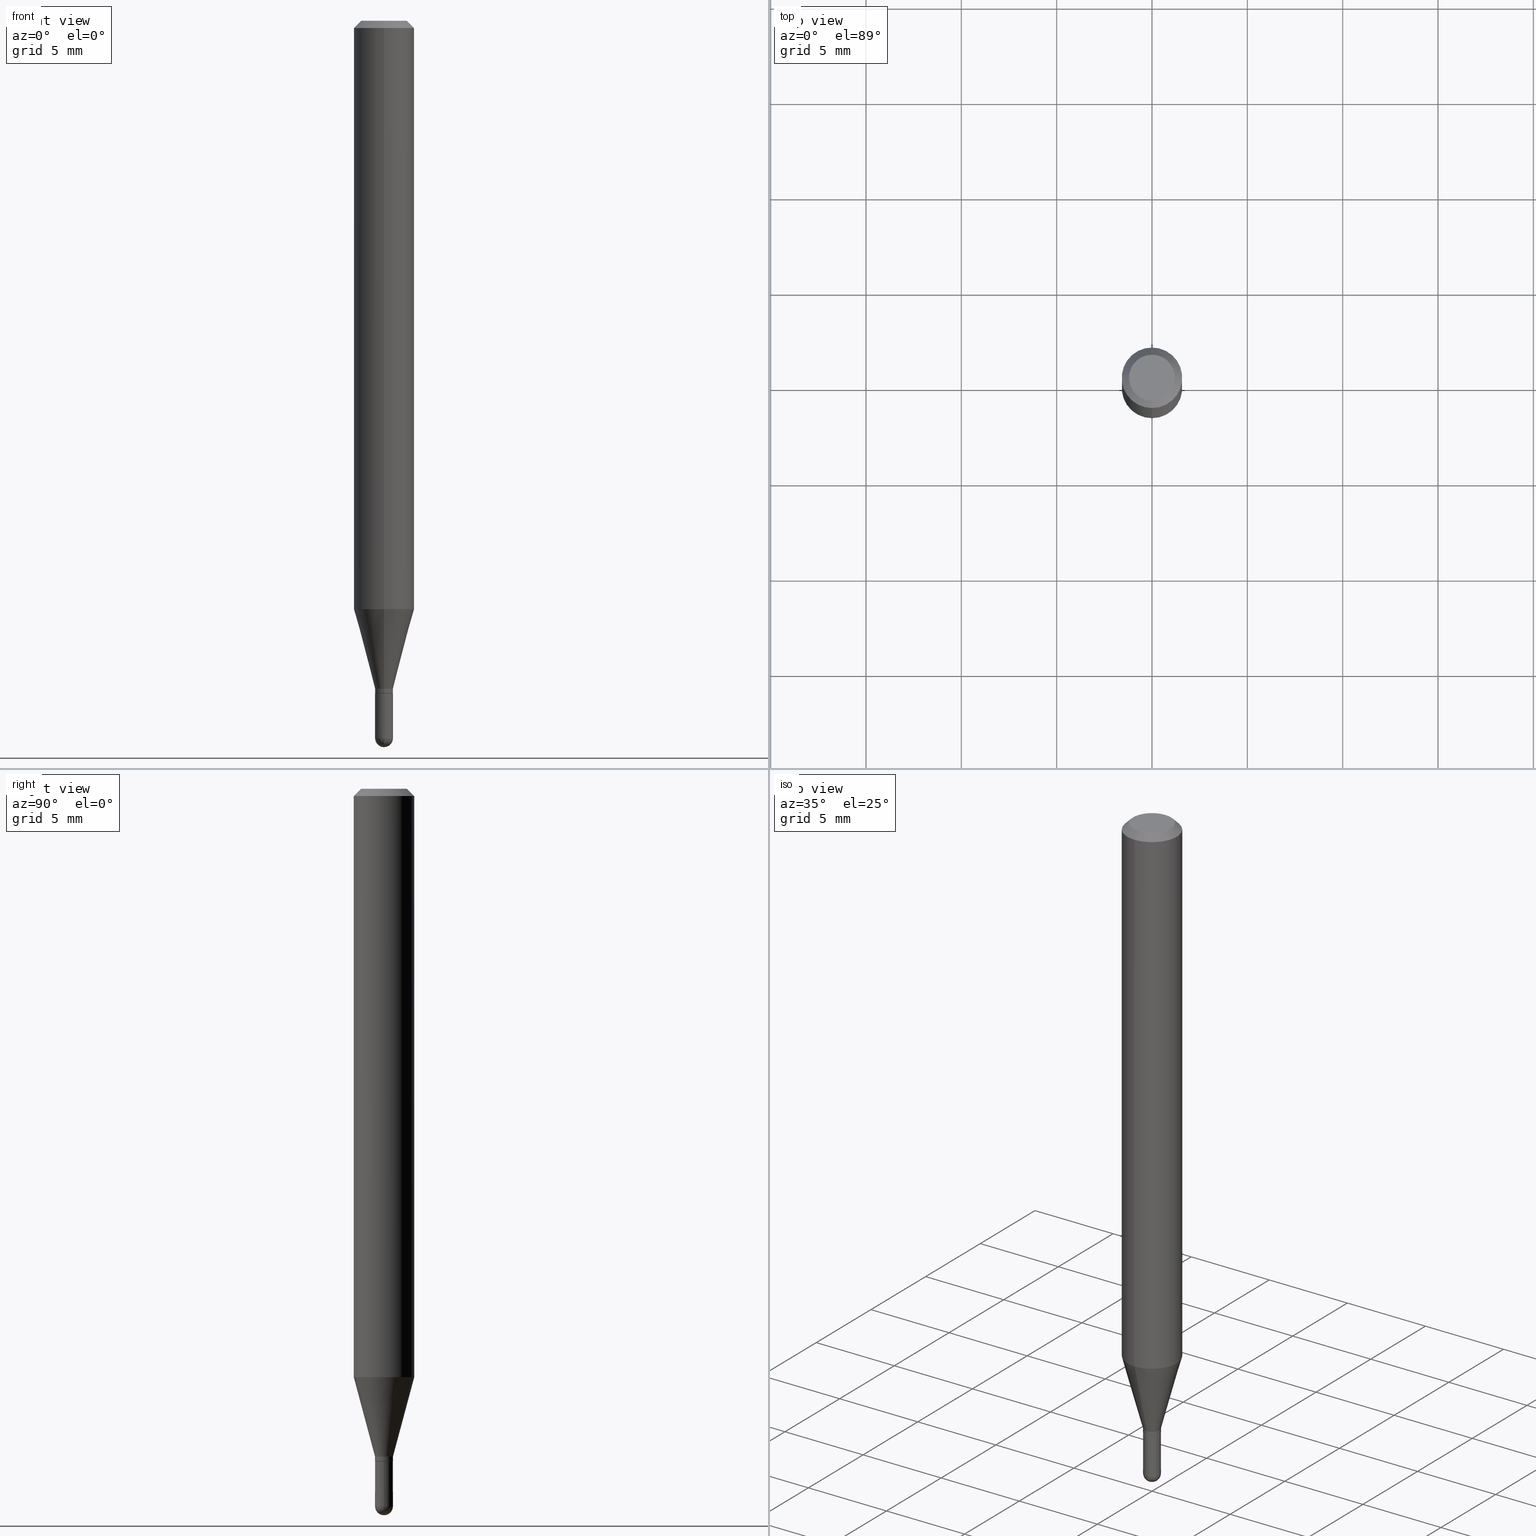
[diagram: canonical four-view strip — front | top / right | iso, engineering-drawing reading convention]
A machine part, canonical four-view strip (front | top / right | iso — engineering-drawing reading convention). The complete STEP part file that produces these views, byte-faithful:
ISO-10303-21;
HEADER;
FILE_DESCRIPTION (( 'STEP AP203' ),
    '1' );
FILE_NAME ('00475.STEP',
    '2024-03-07T17:59:24',
    ( '' ),
    ( '' ),
    'SwSTEP 2.0',
    'SolidWorks 2023',
    '' );
FILE_SCHEMA (( 'CONFIG_CONTROL_DESIGN' ));
ENDSEC;

DATA;
#1 = CLOSED_SHELL ( 'NONE', ( #245, #391, #32, #205, #175, #129, #502, #293, #14, #128, #392, #95 ) ) ;
#2 = DIRECTION ( 'NONE',  ( 1.000000000000000000, -6.982962677686266711E-15, 4.876176775795935232E-29 ) ) ;
#3 = CARTESIAN_POINT ( 'NONE',  ( -1.291848095371616572E-16, -0.01850000000000473835, -1.379000000000000226 ) ) ;
#4 = VECTOR ( 'NONE', #498, 39.37007874015748143 ) ;
#5 = AXIS2_PLACEMENT_3D ( 'NONE', #329, #487, #317 ) ;
#6 = EDGE_LOOP ( 'NONE', ( #135, #108, #55, #509 ) ) ;
#7 = DIRECTION ( 'NONE',  ( -6.982962677686265922E-15, -1.000000000000000000, 0.000000000000000000 ) ) ;
#8 = VERTEX_POINT ( 'NONE', #439 ) ;
#9 = FACE_OUTER_BOUND ( 'NONE', #230, .T. ) ;
#10 = COORDINATED_UNIVERSAL_TIME_OFFSET ( 5, 0, .BEHIND. ) ;
#11 = DIRECTION ( 'NONE',  ( -6.982962677686265922E-15, -1.000000000000000000, 3.491496932792690860E-15 ) ) ;
#12 = LINE ( 'NONE', #156, #105 ) ;
#13 = CC_DESIGN_DATE_AND_TIME_ASSIGNMENT ( #114, #270, ( #333 ) ) ;
#14 = ADVANCED_FACE ( 'NONE', ( #85 ), #389, .F. ) ;
#15 = CARTESIAN_POINT ( 'NONE',  ( 3.840629472727447874E-16, 0.04749999999999999362, -1.747056831868805383E-16 ) ) ;
#16 = CIRCLE ( 'NONE', #28, 0.01800000000000000211 ) ;
#17 = ORIENTED_EDGE ( 'NONE', *, *, #66, .T. ) ;
#18 = VECTOR ( 'NONE', #106, 39.37007874015748143 ) ;
#19 = DIMENSIONAL_EXPONENTS ( 1.000000000000000000, 0.000000000000000000, 0.000000000000000000, 0.000000000000000000, 0.000000000000000000, 0.000000000000000000, 0.000000000000000000 ) ;
#20 = FACE_OUTER_BOUND ( 'NONE', #33, .T. ) ;
#21 = DIRECTION ( 'NONE',  ( -6.982962677686265133E-15, -1.000000000000000000, 0.000000000000000000 ) ) ;
#22 = COORDINATED_UNIVERSAL_TIME_OFFSET ( 5, 0, .BEHIND. ) ;
#23 = VECTOR ( 'NONE', #184, 39.37007874015748143 ) ;
#24 = APPROVAL_PERSON_ORGANIZATION ( #481, #207, #117 ) ;
#25 = EDGE_LOOP ( 'NONE', ( #269, #144, #17, #210 ) ) ;
#26 = CARTESIAN_POINT ( 'NONE',  ( 2.166572731139033405E-46, -3.093319248265844011E-32, -8.859578879227704673E-18 ) ) ;
#27 = FACE_OUTER_BOUND ( 'NONE', #67, .T. ) ;
#28 = AXIS2_PLACEMENT_3D ( 'NONE', #407, #89, #21 ) ;
#29 = VECTOR ( 'NONE', #155, 39.37007874015748143 ) ;
#30 = CIRCLE ( 'NONE', #189, 0.01850000000000004766 ) ;
#31 = EDGE_CURVE ( 'NONE', #262, #340, #335, .T. ) ;
#32 = ADVANCED_FACE ( 'NONE', ( #443 ), #285, .T. ) ;
#33 = EDGE_LOOP ( 'NONE', ( #116, #424, #75, #223 ) ) ;
#34 = ORIENTED_EDGE ( 'NONE', *, *, #199, .F. ) ;
#35 = CIRCLE ( 'NONE', #408, 0.06250000000000000000 ) ;
#36 = AXIS2_PLACEMENT_3D ( 'NONE', #224, #109, #301 ) ;
#37 = FACE_OUTER_BOUND ( 'NONE', #479, .T. ) ;
#38 = ORIENTED_EDGE ( 'NONE', *, *, #450, .F. ) ;
#39 = CARTESIAN_POINT ( 'NONE',  ( -4.364351673553912750E-16, -0.06250000000000005551, -0.01499999999999979128 ) ) ;
#40 = CYLINDRICAL_SURFACE ( 'NONE', #136, 0.01849999999999992276 ) ;
#41 = ORIENTED_EDGE ( 'NONE', *, *, #449, .F. ) ;
#42 = CARTESIAN_POINT ( 'NONE',  ( 1.291848095372298936E-16, 0.01849999999999515227, -1.389000000000000234 ) ) ;
#43 = CARTESIAN_POINT ( 'NONE',  ( 3.622962036363280209E-29, -5.172629603496120178E-15, -1.481500000000000039 ) ) ;
#44 = FACE_OUTER_BOUND ( 'NONE', #489, .T. ) ;
#45 = ORIENTED_EDGE ( 'NONE', *, *, #80, .F. ) ;
#46 = EDGE_CURVE ( 'NONE', #302, #350, #16, .T. ) ;
#47 = DIRECTION ( 'NONE',  ( -1.000000000000000000, 6.982962677686265922E-15, -4.883557194083112901E-29 ) ) ;
#48 = EDGE_CURVE ( 'NONE', #310, #102, #194, .T. ) ;
#49 = CARTESIAN_POINT ( 'NONE',  ( 3.668186875482556643E-31, -5.237245399189039446E-17, -0.01500000000000000812 ) ) ;
#50 = CARTESIAN_POINT ( 'NONE',  ( -0.01850000000000000255, -4.879698185459006925E-15, -1.481500000000000039 ) ) ;
#51 = DIRECTION ( 'NONE',  ( -6.982962677686265922E-15, -1.000000000000000000, 3.491496932792690860E-15 ) ) ;
#52 = DIRECTION ( 'NONE',  ( 1.000000000000000000, -6.982962677686253300E-15, 0.000000000000000000 ) ) ;
#53 = DIRECTION ( 'NONE',  ( -2.445457916988369542E-29, 3.491496932792690860E-15, 1.000000000000000000 ) ) ;
#54 = DATE_AND_TIME ( #228, #398 ) ;
#55 = ORIENTED_EDGE ( 'NONE', *, *, #31, .F. ) ;
#56 = AXIS2_PLACEMENT_3D ( 'NONE', #103, #183, #2 ) ;
#57 = FACE_OUTER_BOUND ( 'NONE', #484, .T. ) ;
#58 = AXIS2_PLACEMENT_3D ( 'NONE', #400, #346, #384 ) ;
#59 = AXIS2_PLACEMENT_3D ( 'NONE', #154, #492, #361 ) ;
#60 = APPROVAL ( #326, 'UNSPECIFIED' ) ;
#61 = ORIENTED_EDGE ( 'NONE', *, *, #426, .F. ) ;
#62 = DIRECTION ( 'NONE',  ( -6.982962677686266711E-15, -1.000000000000000000, 3.491496932792691255E-15 ) ) ;
#63 = PERSON_AND_ORGANIZATION_ROLE ( 'creator' ) ;
#64 = EDGE_CURVE ( 'NONE', #141, #102, #12, .T. ) ;
#65 = APPROVAL_PERSON_ORGANIZATION ( #505, #60, #395 ) ;
#66 = EDGE_CURVE ( 'NONE', #417, #102, #35, .T. ) ;
#67 = EDGE_LOOP ( 'NONE', ( #497, #342, #174, #344, #405 ) ) ;
#68 = DIRECTION ( 'NONE',  ( -2.445457916988369542E-29, 3.491496932792690860E-15, 1.000000000000000000 ) ) ;
#69 = ORIENTED_EDGE ( 'NONE', *, *, #149, .T. ) ;
#70 = CARTESIAN_POINT ( 'NONE',  ( 3.396756171791154536E-29, -4.849667579653129396E-15, -1.389000000000000234 ) ) ;
#71 = ORIENTED_EDGE ( 'NONE', *, *, #80, .T. ) ;
#72 = DIRECTION ( 'NONE',  ( 2.445457916988369542E-29, -3.491496932792690860E-15, -1.000000000000000000 ) ) ;
#73 = CARTESIAN_POINT ( 'NONE',  ( 1.291848095372323095E-16, 0.01849999999999485042, -1.481500000000000039 ) ) ;
#74 = DIRECTION ( 'NONE',  ( -2.445468806185136597E-29, 3.491481338843145583E-15, 1.000000000000000000 ) ) ;
#75 = ORIENTED_EDGE ( 'NONE', *, *, #315, .T. ) ;
#76 = DIRECTION ( 'NONE',  ( -1.807323732225330928E-15, -0.2588190451025182970, 0.9659258262890689783 ) ) ;
#77 = FACE_OUTER_BOUND ( 'NONE', #284, .T. ) ;
#78 = ORIENTED_EDGE ( 'NONE', *, *, #112, .T. ) ;
#79 = EDGE_CURVE ( 'NONE', #97, #396, #127, .T. ) ;
#80 = EDGE_CURVE ( 'NONE', #141, #506, #420, .T. ) ;
#81 =( LENGTH_UNIT ( ) NAMED_UNIT ( * ) SI_UNIT ( $, .METRE. ) );
#82 = DIRECTION ( 'NONE',  ( -2.445457916988369542E-29, 3.491496932792690860E-15, 1.000000000000000000 ) ) ;
#83 = AXIS2_PLACEMENT_3D ( 'NONE', #145, #72, #86 ) ;
#84 = DATE_AND_TIME ( #226, #243 ) ;
#85 = FACE_OUTER_BOUND ( 'NONE', #314, .T. ) ;
#86 = DIRECTION ( 'NONE',  ( 6.982962677686265922E-15, 1.000000000000000000, -3.483106191921935554E-15 ) ) ;
#87 = DIRECTION ( 'NONE',  ( -7.105427357601000281E-15, -1.000000000000000000, 0.000000000000000000 ) ) ;
#88 = DIRECTION ( 'NONE',  ( -2.445457916988369542E-29, 3.491496932792690860E-15, 1.000000000000000000 ) ) ;
#89 = DIRECTION ( 'NONE',  ( -2.445457916988369542E-29, 3.491496932792690860E-15, 1.000000000000000000 ) ) ;
#90 = ORIENTED_EDGE ( 'NONE', *, *, #215, .F. ) ;
#91 =( NAMED_UNIT ( * ) SI_UNIT ( $, .STERADIAN. ) SOLID_ANGLE_UNIT ( ) );
#92 = CIRCLE ( 'NONE', #231, 0.06250000000000000000 ) ;
#93 = DIRECTION ( 'NONE',  ( -2.445457916988369542E-29, 3.491496932792690860E-15, 1.000000000000000000 ) ) ;
#94 = APPROVAL ( #358, 'UNSPECIFIED' ) ;
#95 = ADVANCED_FACE ( 'NONE', ( #57 ), #40, .T. ) ;
#96 = AXIS2_PLACEMENT_3D ( 'NONE', #511, #47, #143 ) ;
#97 = VERTEX_POINT ( 'NONE', #268 ) ;
#98 = DIRECTION ( 'NONE',  ( -2.445468806185136597E-29, 3.491481338843145583E-15, 1.000000000000000000 ) ) ;
#99 = UNCERTAINTY_MEASURE_WITH_UNIT (LENGTH_MEASURE( 1.000000000000000082E-05 ), #393, 'distance_accuracy_value', 'NONE');
#100 = CARTESIAN_POINT ( 'NONE',  ( 3.668186875482556643E-31, -5.237245399189039446E-17, -0.01500000000000000812 ) ) ;
#101 = ORIENTED_EDGE ( 'NONE', *, *, #149, .F. ) ;
#102 = VERTEX_POINT ( 'NONE', #222 ) ;
#103 = CARTESIAN_POINT ( 'NONE',  ( 0.000000000000000000, 0.000000000000000000, 0.000000000000000000 ) ) ;
#104 = ORIENTED_EDGE ( 'NONE', *, *, #147, .T. ) ;
#105 = VECTOR ( 'NONE', #125, 39.37007874015748143 ) ;
#106 = DIRECTION ( 'NONE',  ( 1.839019923739601104E-15, 0.2588190451025250693, 0.9659258262890670910 ) ) ;
#107 = CYLINDRICAL_SURFACE ( 'NONE', #119, 0.06250000000000000000 ) ;
#108 = ORIENTED_EDGE ( 'NONE', *, *, #316, .T. ) ;
#109 = DIRECTION ( 'NONE',  ( -2.445457916988369542E-29, 3.491496932792690860E-15, 1.000000000000000000 ) ) ;
#110 = CARTESIAN_POINT ( 'NONE',  ( 3.372286467526962269E-29, -4.814774270321121569E-15, -1.379000000000000226 ) ) ;
#111 = ORIENTED_EDGE ( 'NONE', *, *, #66, .F. ) ;
#112 = EDGE_CURVE ( 'NONE', #203, #381, #305, .T. ) ;
#113 = EDGE_CURVE ( 'NONE', #150, #8, #379, .T. ) ;
#114 = DATE_AND_TIME ( #163, #287 ) ;
#115 = CARTESIAN_POINT ( 'NONE',  ( -1.256933281983188226E-16, -0.01800000000000484893, -1.389000000000000234 ) ) ;
#116 = ORIENTED_EDGE ( 'NONE', *, *, #48, .F. ) ;
#117 = APPROVAL_ROLE ( '' ) ;
#118 = CARTESIAN_POINT ( 'NONE',  ( 3.372286467526962269E-29, -4.814774270321121569E-15, -1.379000000000000226 ) ) ;
#119 = AXIS2_PLACEMENT_3D ( 'NONE', #404, #82, #11 ) ;
#120 = CARTESIAN_POINT ( 'NONE',  ( 3.316907271900976096E-16, 0.04749999999999999362, -1.702758937472666490E-16 ) ) ;
#121 = CALENDAR_DATE ( 2024, 7, 3 ) ;
#122 = DIRECTION ( 'NONE',  ( -2.445468806185136597E-29, 3.491481338843145583E-15, 1.000000000000000000 ) ) ;
#123 = ORIENTED_EDGE ( 'NONE', *, *, #493, .F. ) ;
#124 = CARTESIAN_POINT ( 'NONE',  ( 3.621379978728298144E-29, -5.174895200074542438E-15, -1.481500000000000039 ) ) ;
#125 = DIRECTION ( 'NONE',  ( 4.937700262164548042E-15, 0.7071067811865451302, -0.7071067811865499042 ) ) ;
#126 = PERSON_AND_ORGANIZATION ( #466, #422 ) ;
#127 = CIRCLE ( 'NONE', #321, 0.01849999999999992623 ) ;
#128 = ADVANCED_FACE ( 'NONE', ( #362 ), #187, .F. ) ;
#129 = ADVANCED_FACE ( 'NONE', ( #237 ), #440, .T. ) ;
#130 = ORIENTED_EDGE ( 'NONE', *, *, #500, .T. ) ;
#131 = FACE_OUTER_BOUND ( 'NONE', #159, .T. ) ;
#132 = VECTOR ( 'NONE', #446, 39.37007874015748143 ) ;
#133 = CARTESIAN_POINT ( 'NONE',  ( 3.396741046696845031E-29, -4.849689239649047874E-15, -1.389000000000000234 ) ) ;
#134 = DATE_AND_TIME ( #173, #504 ) ;
#135 = ORIENTED_EDGE ( 'NONE', *, *, #494, .F. ) ;
#136 = AXIS2_PLACEMENT_3D ( 'NONE', #474, #157, #349 ) ;
#137 = CC_DESIGN_APPROVAL ( #60, ( #369 ) ) ;
#138 = ORIENTED_EDGE ( 'NONE', *, *, #500, .F. ) ;
#139 = CC_DESIGN_DATE_AND_TIME_ASSIGNMENT ( #134, #294, ( #369 ) ) ;
#140 = DIRECTION ( 'NONE',  ( 6.982962677686265922E-15, 1.000000000000000000, 0.000000000000000000 ) ) ;
#141 = VERTEX_POINT ( 'NONE', #15 ) ;
#142 = FACE_OUTER_BOUND ( 'NONE', #6, .T. ) ;
#143 = DIRECTION ( 'NONE',  ( 6.982962677686265922E-15, 1.000000000000000000, 0.000000000000000000 ) ) ;
#144 = ORIENTED_EDGE ( 'NONE', *, *, #199, .T. ) ;
#145 = CARTESIAN_POINT ( 'NONE',  ( 3.668186875482556643E-31, -5.237245399189039446E-17, -0.01500000000000000812 ) ) ;
#146 = CARTESIAN_POINT ( 'NONE',  ( 0.000000000000000000, 0.000000000000000000, 0.000000000000000000 ) ) ;
#147 = EDGE_CURVE ( 'NONE', #8, #150, #421, .T. ) ;
#148 = CARTESIAN_POINT ( 'NONE',  ( 1.314504061156179609E-16, 0.01849999999999992276, -6.459269325666451004E-17 ) ) ;
#149 = EDGE_CURVE ( 'NONE', #350, #396, #468, .T. ) ;
#150 = VERTEX_POINT ( 'NONE', #3 ) ;
#151 =( NAMED_UNIT ( * ) PLANE_ANGLE_UNIT ( ) SI_UNIT ( $, .RADIAN. ) );
#152 = CARTESIAN_POINT ( 'NONE',  ( 1.278976924368519941E-16, 0.01799999999999515182, -1.389000000000000234 ) ) ;
#153 = ORIENTED_EDGE ( 'NONE', *, *, #236, .T. ) ;
#154 = CARTESIAN_POINT ( 'NONE',  ( 0.000000000000000000, 0.000000000000000000, 0.000000000000000000 ) ) ;
#155 = DIRECTION ( 'NONE',  ( 5.024295867788190974E-15, 0.7071067811865681119, 0.7071067811865270336 ) ) ;
#156 = CARTESIAN_POINT ( 'NONE',  ( 4.364351673553919652E-16, 0.06249999999999995143, -0.01500000000000022669 ) ) ;
#157 = DIRECTION ( 'NONE',  ( -2.445457916988369542E-29, 3.491496932792690860E-15, 1.000000000000000000 ) ) ;
#158 = AXIS2_PLACEMENT_3D ( 'NONE', #274, #402, #200 ) ;
#159 = EDGE_LOOP ( 'NONE', ( #101, #430, #153, #138 ) ) ;
#160 = PRODUCT ( '00475', '00475', '', ( #201 ) ) ;
#161 = LENGTH_MEASURE_WITH_UNIT ( LENGTH_MEASURE( 0.02539999999999999897 ), #81 );
#162 = ORIENTED_EDGE ( 'NONE', *, *, #147, .F. ) ;
#163 = CALENDAR_DATE ( 2024, 7, 3 ) ;
#164 = MANIFOLD_SOLID_BREP ( 'Body-Move/Copy2[1]', #178 ) ;
#165 = CC_DESIGN_PERSON_AND_ORGANIZATION_ASSIGNMENT ( #410, #190, ( #160 ) ) ;
#166 = AXIS2_PLACEMENT_3D ( 'NONE', #242, #352, #196 ) ;
#167 = EDGE_LOOP ( 'NONE', ( #38, #104, #306, #216 ) ) ;
#168 = DIRECTION ( 'NONE',  ( 2.438088387897960049E-29, -3.491481338843145188E-15, -1.000000000000000000 ) ) ;
#169 = AXIS2_PLACEMENT_3D ( 'NONE', #229, #359, #325 ) ;
#170 = DIRECTION ( 'NONE',  ( -2.445457916988369542E-29, 3.491496932792690860E-15, 1.000000000000000000 ) ) ;
#171 = CIRCLE ( 'NONE', #485, 0.06250000000000000000 ) ;
#172 = VECTOR ( 'NONE', #432, 39.37007874015748143 ) ;
#173 = CALENDAR_DATE ( 2024, 7, 3 ) ;
#174 = ORIENTED_EDGE ( 'NONE', *, *, #112, .F. ) ;
#175 = ADVANCED_FACE ( 'NONE', ( #309 ), #416, .T. ) ;
#176 = EDGE_LOOP ( 'NONE', ( #78, #235 ) ) ;
#177 = ADVANCED_FACE ( 'NONE', ( #77 ), #191, .T. ) ;
#178 = CLOSED_SHELL ( 'NONE', ( #371, #177, #355, #382, #460 ) ) ;
#179 = VECTOR ( 'NONE', #480, 39.37007874015748143 ) ;
#180 = CC_DESIGN_APPROVAL ( #94, ( #333 ) ) ;
#181 = CYLINDRICAL_SURFACE ( 'NONE', #56, 0.01849999999999999908 ) ;
#182 = ORIENTED_EDGE ( 'NONE', *, *, #414, .F. ) ;
#183 = DIRECTION ( 'NONE',  ( -2.445468806185136597E-29, 3.491481338843145583E-15, 1.000000000000000000 ) ) ;
#184 = DIRECTION ( 'NONE',  ( -4.851104656540964275E-15, -0.7071067811865500152, -0.7071067811865450192 ) ) ;
#185 = ORIENTED_EDGE ( 'NONE', *, *, #315, .F. ) ;
#186 = CARTESIAN_POINT ( 'NONE',  ( 3.396741046696845031E-29, -4.849689239649047874E-15, -1.389000000000000234 ) ) ;
#187 = PLANE ( 'NONE',  #169 ) ;
#188 = CARTESIAN_POINT ( 'NONE',  ( 3.395518317738351678E-29, -4.847943491182652190E-15, -1.388500000000000290 ) ) ;
#189 = AXIS2_PLACEMENT_3D ( 'NONE', #124, #283, #87 ) ;
#190 = PERSON_AND_ORGANIZATION_ROLE ( 'design_owner' ) ;
#191 = SPHERICAL_SURFACE ( 'NONE', #96, 0.01850000000000004766 ) ;
#192 = ORIENTED_EDGE ( 'NONE', *, *, #493, .T. ) ;
#193 = CARTESIAN_POINT ( 'NONE',  ( 3.372286467526962269E-29, -4.814774270321121569E-15, -1.379000000000000226 ) ) ;
#194 = LINE ( 'NONE', #360, #289 ) ;
#195 = LINE ( 'NONE', #328, #179 ) ;
#196 = DIRECTION ( 'NONE',  ( -6.982962677686265922E-15, -1.000000000000000000, 0.000000000000000000 ) ) ;
#197 = LINE ( 'NONE', #429, #397 ) ;
#198 = DIRECTION ( 'NONE',  ( 6.982962677686265922E-15, 1.000000000000000000, -3.483106191921935554E-15 ) ) ;
#199 = EDGE_CURVE ( 'NONE', #506, #417, #394, .T. ) ;
#200 = DIRECTION ( 'NONE',  ( 6.982962677686265133E-15, 1.000000000000000000, 0.000000000000000000 ) ) ;
#201 = MECHANICAL_CONTEXT ( 'NONE', #319, 'mechanical' ) ;
#202 = CONICAL_SURFACE ( 'NONE', #83, 0.06250000000000000000, 0.7853981633974483900 ) ;
#203 = VERTEX_POINT ( 'NONE', #304 ) ;
#204 = CARTESIAN_POINT ( 'NONE',  ( 2.166572731139033405E-46, -3.093319248265844011E-32, -8.859578879227704673E-18 ) ) ;
#205 = ADVANCED_FACE ( 'NONE', ( #44 ), #107, .T. ) ;
#206 = CARTESIAN_POINT ( 'NONE',  ( 3.622962036363280209E-29, -5.172629603496120178E-15, -1.481500000000000039 ) ) ;
#207 = APPROVAL ( #233, 'UNSPECIFIED' ) ;
#208 = AXIS2_PLACEMENT_3D ( 'NONE', #338, #373, #140 ) ;
#209 = APPLICATION_CONTEXT ( 'configuration controlled 3d designs of mechanical parts and assemblies' ) ;
#210 = ORIENTED_EDGE ( 'NONE', *, *, #64, .F. ) ;
#211 = ORIENTED_EDGE ( 'NONE', *, *, #494, .T. ) ;
#212 = CARTESIAN_POINT ( 'NONE',  ( 1.296740492762519750E-16, 0.01799999999999515182, -1.389000000000000234 ) ) ;
#213 = AXIS2_PLACEMENT_3D ( 'NONE', #26, #261, #62 ) ;
#214 = EDGE_CURVE ( 'NONE', #396, #8, #265, .T. ) ;
#215 = EDGE_CURVE ( 'NONE', #381, #203, #495, .T. ) ;
#216 = ORIENTED_EDGE ( 'NONE', *, *, #332, .F. ) ;
#217 = DIRECTION ( 'NONE',  ( -2.445468806185136597E-29, 3.491481338843145583E-15, 1.000000000000000000 ) ) ;
#218 = ORIENTED_EDGE ( 'NONE', *, *, #79, .T. ) ;
#219 = AXIS2_PLACEMENT_3D ( 'NONE', #120, #436, #401 ) ;
#220 = AXIS2_PLACEMENT_3D ( 'NONE', #267, #217, #454 ) ;
#221 = FACE_OUTER_BOUND ( 'NONE', #471, .T. ) ;
#222 = CARTESIAN_POINT ( 'NONE',  ( 4.440892098500924943E-16, 0.06249999999999993755, -0.01500000000000022669 ) ) ;
#223 = ORIENTED_EDGE ( 'NONE', *, *, #413, .F. ) ;
#224 = CARTESIAN_POINT ( 'NONE',  ( 3.396741046696845031E-29, -4.849689239649047874E-15, -1.389000000000000234 ) ) ;
#225 = DIRECTION ( 'NONE',  ( -4.937700262164674260E-15, -0.7071067811865632269, 0.7071067811865319186 ) ) ;
#226 = CALENDAR_DATE ( 2024, 7, 3 ) ;
#227 = ORIENTED_EDGE ( 'NONE', *, *, #256, .T. ) ;
#228 = CALENDAR_DATE ( 2024, 7, 3 ) ;
#229 = CARTESIAN_POINT ( 'NONE',  ( 3.396741046696845031E-29, -4.849689239649047874E-15, -1.389000000000000234 ) ) ;
#230 = EDGE_LOOP ( 'NONE', ( #34, #45, #512, #240 ) ) ;
#231 = AXIS2_PLACEMENT_3D ( 'NONE', #322, #170, #428 ) ;
#232 = LOCAL_TIME ( 12, 59, 24.00000000000000000, #444 ) ;
#233 = APPROVAL_STATUS ( 'not_yet_approved' ) ;
#234 = CARTESIAN_POINT ( 'NONE',  ( -4.287811248607203282E-16, -0.06250000000000005551, -0.01499999999999979128 ) ) ;
#235 = ORIENTED_EDGE ( 'NONE', *, *, #215, .T. ) ;
#236 = EDGE_CURVE ( 'NONE', #302, #97, #478, .T. ) ;
#237 = FACE_OUTER_BOUND ( 'NONE', #167, .T. ) ;
#238 = CC_DESIGN_PERSON_AND_ORGANIZATION_ASSIGNMENT ( #297, #458, ( #369 ) ) ;
#239 = ORIENTED_EDGE ( 'NONE', *, *, #79, .F. ) ;
#240 = ORIENTED_EDGE ( 'NONE', *, *, #413, .T. ) ;
#241 = CIRCLE ( 'NONE', #158, 0.01850000000000004766 ) ;
#242 = CARTESIAN_POINT ( 'NONE',  ( 3.395518317738351678E-29, -4.847943491182652190E-15, -1.388500000000000290 ) ) ;
#243 = LOCAL_TIME ( 12, 59, 24.00000000000000000, #433 ) ;
#244 = DIRECTION ( 'NONE',  ( -6.982962677686265922E-15, -1.000000000000000000, 0.000000000000000000 ) ) ;
#245 = ADVANCED_FACE ( 'NONE', ( #318 ), #482, .T. ) ;
#246 = DIRECTION ( 'NONE',  ( 1.000000000000000000, -6.982962677686253300E-15, 0.000000000000000000 ) ) ;
#247 = AXIS2_PLACEMENT_3D ( 'NONE', #110, #271, #313 ) ;
#248 = CIRCLE ( 'NONE', #166, 0.01849999999999992623 ) ;
#249 = ORIENTED_EDGE ( 'NONE', *, *, #257, .T. ) ;
#250 = LINE ( 'NONE', #374, #341 ) ;
#251 = DIRECTION ( 'NONE',  ( 1.000000000000000000, -6.982962677686266711E-15, 4.876176775795935232E-29 ) ) ;
#252 = AXIS2_PLACEMENT_3D ( 'NONE', #204, #447, #411 ) ;
#253 = AXIS2_PLACEMENT_3D ( 'NONE', #488, #74, #354 ) ;
#254 = SECURITY_CLASSIFICATION_LEVEL ( 'unclassified' ) ;
#255 =( GEOMETRIC_REPRESENTATION_CONTEXT ( 3 ) GLOBAL_UNCERTAINTY_ASSIGNED_CONTEXT ( ( #99 ) ) GLOBAL_UNIT_ASSIGNED_CONTEXT ( ( #393, #151, #91 ) ) REPRESENTATION_CONTEXT ( 'NONE', 'WORKASPACE' ) );
#256 = EDGE_CURVE ( 'NONE', #262, #203, #197, .T. ) ;
#257 = EDGE_CURVE ( 'NONE', #363, #262, #364, .T. ) ;
#258 = ADVANCED_BREP_SHAPE_REPRESENTATION ( '00475', ( #164, #336, #5 ), #255 ) ;
#259 = ORIENTED_EDGE ( 'NONE', *, *, #46, .T. ) ;
#260 = ORIENTED_EDGE ( 'NONE', *, *, #295, .F. ) ;
#261 = DIRECTION ( 'NONE',  ( -2.445457916988369542E-29, 3.491496932792690860E-15, 1.000000000000000000 ) ) ;
#262 = VERTEX_POINT ( 'NONE', #412 ) ;
#263 = CIRCLE ( 'NONE', #36, 0.01800000000000000211 ) ;
#264 = DIRECTION ( 'NONE',  ( 1.000000000000000000, -6.982962677686253300E-15, 0.000000000000000000 ) ) ;
#265 = LINE ( 'NONE', #148, #172 ) ;
#266 = ORIENTED_EDGE ( 'NONE', *, *, #236, .F. ) ;
#267 = CARTESIAN_POINT ( 'NONE',  ( 3.622962036363280209E-29, -5.172629603496120178E-15, -1.481500000000000039 ) ) ;
#268 = CARTESIAN_POINT ( 'NONE',  ( -1.291848095371618790E-16, -0.01850000000000483549, -1.388500000000000290 ) ) ;
#269 = ORIENTED_EDGE ( 'NONE', *, *, #339, .F. ) ;
#270 = DATE_TIME_ROLE ( 'creation_date' ) ;
#271 = DIRECTION ( 'NONE',  ( -2.445457916988369542E-29, 3.491496932792690860E-15, 1.000000000000000000 ) ) ;
#272 = DIRECTION ( 'NONE',  ( -2.445468806185136597E-29, 3.491481338843145583E-15, 1.000000000000000000 ) ) ;
#273 = AXIS2_PLACEMENT_3D ( 'NONE', #43, #272, #52 ) ;
#274 = CARTESIAN_POINT ( 'NONE',  ( 3.621379978728298144E-29, -5.174895200074542438E-15, -1.481500000000000039 ) ) ;
#275 = AXIS2_PLACEMENT_3D ( 'NONE', #118, #88, #438 ) ;
#276 = CC_DESIGN_PERSON_AND_ORGANIZATION_ASSIGNMENT ( #423, #375, ( #441 ) ) ;
#277 = CYLINDRICAL_SURFACE ( 'NONE', #59, 0.06250000000000000000 ) ;
#278 = DIRECTION ( 'NONE',  ( -2.445457916988369542E-29, 3.491496932792690860E-15, 1.000000000000000000 ) ) ;
#279 = DIRECTION ( 'NONE',  ( -2.445457916988369542E-29, 3.491496932792690466E-15, 1.000000000000000000 ) ) ;
#280 = CARTESIAN_POINT ( 'NONE',  ( -3.773273898774340269E-16, -0.04749999999999999362, 1.569865254284251043E-16 ) ) ;
#281 = DIRECTION ( 'NONE',  ( -2.445468806185136877E-29, 3.491481338843145188E-15, 1.000000000000000000 ) ) ;
#282 = ORIENTED_EDGE ( 'NONE', *, *, #353, .F. ) ;
#283 = DIRECTION ( 'NONE',  ( -1.000000000000000000, 7.105427357601001070E-15, -4.926315508542082329E-29 ) ) ;
#284 = EDGE_LOOP ( 'NONE', ( #298, #211, #41, #182 ) ) ;
#285 = CONICAL_SURFACE ( 'NONE', #483, 0.06250000000000000000, 0.7853981633974483900 ) ;
#286 = CONICAL_SURFACE ( 'NONE', #503, 0.01800000000000000211, 0.7853981633974739252 ) ;
#287 = LOCAL_TIME ( 12, 59, 24.00000000000000000, #10 ) ;
#288 = ORIENTED_EDGE ( 'NONE', *, *, #214, .T. ) ;
#289 = VECTOR ( 'NONE', #279, 39.37007874015748143 ) ;
#290 = AXIS2_PLACEMENT_3D ( 'NONE', #472, #53, #390 ) ;
#291 = CARTESIAN_POINT ( 'NONE',  ( 1.314504061156515121E-16, 0.01849999999999501349, -1.388500000000000290 ) ) ;
#292 = DIRECTION ( 'NONE',  ( -2.445457916988369542E-29, 3.491496932792690860E-15, 1.000000000000000000 ) ) ;
#293 = ADVANCED_FACE ( 'NONE', ( #9 ), #202, .T. ) ;
#294 = DATE_TIME_ROLE ( 'classification_date' ) ;
#295 = EDGE_CURVE ( 'NONE', #300, #310, #457, .T. ) ;
#296 = CIRCLE ( 'NONE', #213, 0.04749999999999999362 ) ;
#297 = PERSON_AND_ORGANIZATION ( #466, #422 ) ;
#298 = ORIENTED_EDGE ( 'NONE', *, *, #316, .F. ) ;
#299 = CC_DESIGN_SECURITY_CLASSIFICATION ( #369, ( #441 ) ) ;
#300 = VERTEX_POINT ( 'NONE', #311 ) ;
#301 = DIRECTION ( 'NONE',  ( -6.982962677686265133E-15, -1.000000000000000000, 0.000000000000000000 ) ) ;
#302 = VERTEX_POINT ( 'NONE', #476 ) ;
#303 = DIRECTION ( 'NONE',  ( -6.982962677686265133E-15, -1.000000000000000000, 0.000000000000000000 ) ) ;
#304 = CARTESIAN_POINT ( 'NONE',  ( 0.01849999999999999908, -4.978852389190325393E-15, -1.389000000000000234 ) ) ;
#305 = CIRCLE ( 'NONE', #456, 0.01849999999999999908 ) ;
#306 = ORIENTED_EDGE ( 'NONE', *, *, #353, .T. ) ;
#307 = CC_DESIGN_APPROVAL ( #207, ( #441 ) ) ;
#308 = LINE ( 'NONE', #434, #132 ) ;
#309 = FACE_OUTER_BOUND ( 'NONE', #445, .T. ) ;
#310 = VERTEX_POINT ( 'NONE', #399 ) ;
#311 = CARTESIAN_POINT ( 'NONE',  ( -4.364351673553620871E-16, -0.06250000000000427436, -1.214789764466969624 ) ) ;
#312 = APPROVAL_DATE_TIME ( #54, #94 ) ;
#313 = DIRECTION ( 'NONE',  ( -6.982962677686265922E-15, -1.000000000000000000, 0.000000000000000000 ) ) ;
#314 = EDGE_LOOP ( 'NONE', ( #71, #475 ) ) ;
#315 = EDGE_CURVE ( 'NONE', #300, #417, #195, .T. ) ;
#316 = EDGE_CURVE ( 'NONE', #376, #340, #241, .T. ) ;
#317 = DIRECTION ( 'NONE',  ( 1.000000000000000000, 0.000000000000000000, 0.000000000000000000 ) ) ;
#318 = FACE_OUTER_BOUND ( 'NONE', #427, .T. ) ;
#319 = APPLICATION_CONTEXT ( 'configuration controlled 3d designs of mechanical parts and assemblies' ) ;
#320 = DIRECTION ( 'NONE',  ( -2.445457916988369542E-29, 3.491496932792690860E-15, 1.000000000000000000 ) ) ;
#321 = AXIS2_PLACEMENT_3D ( 'NONE', #188, #93, #244 ) ;
#322 = CARTESIAN_POINT ( 'NONE',  ( 2.970717246992188659E-29, -4.241434736624381268E-15, -1.214789764466970068 ) ) ;
#323 = CONICAL_SURFACE ( 'NONE', #409, 0.01800000000000000211, 0.7853981633974739252 ) ;
#324 = APPROVAL_DATE_TIME ( #403, #207 ) ;
#325 = DIRECTION ( 'NONE',  ( -6.982962677686265922E-15, -1.000000000000000000, 3.491496932792690466E-15 ) ) ;
#326 = APPROVAL_STATUS ( 'not_yet_approved' ) ;
#327 = VERTEX_POINT ( 'NONE', #50 ) ;
#328 = CARTESIAN_POINT ( 'NONE',  ( -4.364351673553916201E-16, -0.06250000000000000000, 2.182185582995431788E-16 ) ) ;
#329 = CARTESIAN_POINT ( 'NONE',  ( 0.000000000000000000, 0.000000000000000000, 0.000000000000000000 ) ) ;
#330 = CARTESIAN_POINT ( 'NONE',  ( 3.668186875482556643E-31, -5.237245399189039446E-17, -0.01500000000000000812 ) ) ;
#331 = VECTOR ( 'NONE', #225, 39.37007874015748143 ) ;
#332 = EDGE_CURVE ( 'NONE', #310, #300, #92, .T. ) ;
#333 = PRODUCT_DEFINITION ( 'UNKNOWN', '', #441, #415 ) ;
#334 = CARTESIAN_POINT ( 'NONE',  ( -0.01849999999999999908, 1.314504061156185279E-16, -9.100029916971574589E-31 ) ) ;
#335 = CIRCLE ( 'NONE', #273, 0.01850000000000000255 ) ;
#336 = MANIFOLD_SOLID_BREP ( 'Body-Move/Copy2[2]', #1 ) ;
#337 = AXIS2_PLACEMENT_3D ( 'NONE', #387, #278, #51 ) ;
#338 = CARTESIAN_POINT ( 'NONE',  ( 3.621379978728298144E-29, -5.174895200074542438E-15, -1.481500000000000039 ) ) ;
#339 = EDGE_CURVE ( 'NONE', #506, #141, #296, .T. ) ;
#340 = VERTEX_POINT ( 'NONE', #73 ) ;
#341 = VECTOR ( 'NONE', #76, 39.37007874015748143 ) ;
#342 = ORIENTED_EDGE ( 'NONE', *, *, #370, .T. ) ;
#343 = CARTESIAN_POINT ( 'NONE',  ( -0.01849999999999999908, -4.879698185459006925E-15, -1.389000000000000234 ) ) ;
#344 = ORIENTED_EDGE ( 'NONE', *, *, #256, .F. ) ;
#345 = LINE ( 'NONE', #334, #4 ) ;
#346 = DIRECTION ( 'NONE',  ( -2.445457916988369542E-29, 3.491496932792690860E-15, 1.000000000000000000 ) ) ;
#347 = EDGE_LOOP ( 'NONE', ( #357, #61 ) ) ;
#348 = DIRECTION ( 'NONE',  ( -2.445457916988369542E-29, 3.491496932792690860E-15, 1.000000000000000000 ) ) ;
#349 = DIRECTION ( 'NONE',  ( -6.982962677686265922E-15, -1.000000000000000000, 3.491496932792690860E-15 ) ) ;
#350 = VERTEX_POINT ( 'NONE', #212 ) ;
#351 = AXIS2_PLACEMENT_3D ( 'NONE', #206, #367, #246 ) ;
#352 = DIRECTION ( 'NONE',  ( -2.445457916988369542E-29, 3.491496932792690860E-15, 1.000000000000000000 ) ) ;
#353 = EDGE_CURVE ( 'NONE', #150, #300, #250, .T. ) ;
#354 = DIRECTION ( 'NONE',  ( 1.000000000000000000, -6.982962677686254089E-15, 0.000000000000000000 ) ) ;
#355 = ADVANCED_FACE ( 'NONE', ( #418 ), #467, .F. ) ;
#356 = SHAPE_DEFINITION_REPRESENTATION ( #464, #258 ) ;
#357 = ORIENTED_EDGE ( 'NONE', *, *, #46, .F. ) ;
#358 = APPROVAL_STATUS ( 'not_yet_approved' ) ;
#359 = DIRECTION ( 'NONE',  ( -2.445457916988369262E-29, 3.491496932792690466E-15, 1.000000000000000000 ) ) ;
#360 = CARTESIAN_POINT ( 'NONE',  ( 4.440892098500625669E-16, 0.06250000000000000000, -2.182185582995431788E-16 ) ) ;
#361 = DIRECTION ( 'NONE',  ( -6.982962677686265922E-15, -1.000000000000000000, 3.491496932792690860E-15 ) ) ;
#362 = FACE_OUTER_BOUND ( 'NONE', #347, .T. ) ;
#363 = VERTEX_POINT ( 'NONE', #510 ) ;
#364 = CIRCLE ( 'NONE', #351, 0.01850000000000000255 ) ;
#365 = DIRECTION ( 'NONE',  ( 2.445457916988369542E-29, -3.491496932792690860E-15, -1.000000000000000000 ) ) ;
#366 = APPROVAL_ROLE ( '' ) ;
#367 = DIRECTION ( 'NONE',  ( -2.445468806185136597E-29, 3.491481338843145583E-15, 1.000000000000000000 ) ) ;
#368 = AXIS2_PLACEMENT_3D ( 'NONE', #146, #98, #251 ) ;
#369 = SECURITY_CLASSIFICATION ( '', '', #254 ) ;
#370 = EDGE_CURVE ( 'NONE', #327, #381, #345, .T. ) ;
#371 = ADVANCED_FACE ( 'NONE', ( #27 ), #499, .T. ) ;
#372 = ORIENTED_EDGE ( 'NONE', *, *, #370, .F. ) ;
#373 = DIRECTION ( 'NONE',  ( -1.000000000000000000, 6.982962677686265922E-15, -4.883557194083112901E-29 ) ) ;
#374 = CARTESIAN_POINT ( 'NONE',  ( -1.291848095371616572E-16, -0.01850000000000473835, -1.379000000000000226 ) ) ;
#375 = PERSON_AND_ORGANIZATION_ROLE ( 'design_supplier' ) ;
#376 = VERTEX_POINT ( 'NONE', #383 ) ;
#377 = ORIENTED_EDGE ( 'NONE', *, *, #450, .T. ) ;
#378 = LINE ( 'NONE', #473, #18 ) ;
#379 = CIRCLE ( 'NONE', #451, 0.01849999999999992276 ) ;
#380 = CIRCLE ( 'NONE', #469, 0.01850000000000000255 ) ;
#381 = VERTEX_POINT ( 'NONE', #343 ) ;
#382 = ADVANCED_FACE ( 'NONE', ( #142 ), #419, .T. ) ;
#383 = CARTESIAN_POINT ( 'NONE',  ( 3.667412180460213863E-29, -5.238354806553930095E-15, -1.500000000000000222 ) ) ;
#384 = DIRECTION ( 'NONE',  ( -6.982962677686265922E-15, -1.000000000000000000, 0.000000000000000000 ) ) ;
#385 = ORIENTED_EDGE ( 'NONE', *, *, #48, .T. ) ;
#386 = CARTESIAN_POINT ( 'NONE',  ( 3.622962036363280209E-29, -5.172629603496120178E-15, -1.481500000000000039 ) ) ;
#387 = CARTESIAN_POINT ( 'NONE',  ( 0.000000000000000000, 0.000000000000000000, 0.000000000000000000 ) ) ;
#388 = APPROVAL_DATE_TIME ( #84, #60 ) ;
#389 = PLANE ( 'NONE',  #219 ) ;
#390 = DIRECTION ( 'NONE',  ( -6.982962677686265922E-15, -1.000000000000000000, 4.370956789862821150E-15 ) ) ;
#391 = ADVANCED_FACE ( 'NONE', ( #221 ), #323, .T. ) ;
#392 = ADVANCED_FACE ( 'NONE', ( #131 ), #286, .T. ) ;
#393 =( CONVERSION_BASED_UNIT ( 'INCH', #161 ) LENGTH_UNIT ( ) NAMED_UNIT ( #19 ) );
#394 = LINE ( 'NONE', #234, #23 ) ;
#395 = APPROVAL_ROLE ( '' ) ;
#396 = VERTEX_POINT ( 'NONE', #291 ) ;
#397 = VECTOR ( 'NONE', #281, 39.37007874015748143 ) ;
#398 = LOCAL_TIME ( 12, 59, 24.00000000000000000, #22 ) ;
#399 = CARTESIAN_POINT ( 'NONE',  ( 4.440892098500921985E-16, 0.06249999999999573952, -1.214789764466970068 ) ) ;
#400 = CARTESIAN_POINT ( 'NONE',  ( 3.372286467526962269E-29, -4.814774270321121569E-15, -1.379000000000000226 ) ) ;
#401 = DIRECTION ( 'NONE',  ( 6.982962677686265922E-15, 1.000000000000000000, -3.491496932792690466E-15 ) ) ;
#402 = DIRECTION ( 'NONE',  ( 1.000000000000000000, -6.982962677686265922E-15, 4.883557194083112340E-29 ) ) ;
#403 = DATE_AND_TIME ( #121, #232 ) ;
#404 = CARTESIAN_POINT ( 'NONE',  ( 0.000000000000000000, 0.000000000000000000, 0.000000000000000000 ) ) ;
#405 = ORIENTED_EDGE ( 'NONE', *, *, #31, .T. ) ;
#406 = PERSON_AND_ORGANIZATION_ROLE ( 'creator' ) ;
#407 = CARTESIAN_POINT ( 'NONE',  ( 3.396741046696845031E-29, -4.849689239649047874E-15, -1.389000000000000234 ) ) ;
#408 = AXIS2_PLACEMENT_3D ( 'NONE', #330, #320, #491 ) ;
#409 = AXIS2_PLACEMENT_3D ( 'NONE', #133, #292, #455 ) ;
#410 = PERSON_AND_ORGANIZATION ( #466, #422 ) ;
#411 = DIRECTION ( 'NONE',  ( -6.982962677686266711E-15, -1.000000000000000000, 3.491496932792691255E-15 ) ) ;
#412 = CARTESIAN_POINT ( 'NONE',  ( 0.01850000000000000255, -5.140333401111821179E-15, -1.481500000000000039 ) ) ;
#413 = EDGE_CURVE ( 'NONE', #102, #417, #171, .T. ) ;
#414 = EDGE_CURVE ( 'NONE', #340, #327, #380, .T. ) ;
#415 = DESIGN_CONTEXT ( 'detailed design', #209, 'design' ) ;
#416 = CONICAL_SURFACE ( 'NONE', #247, 0.01849999999999992276, 0.2617993877991502960 ) ;
#417 = VERTEX_POINT ( 'NONE', #39 ) ;
#418 = FACE_OUTER_BOUND ( 'NONE', #176, .T. ) ;
#419 = SPHERICAL_SURFACE ( 'NONE', #208, 0.01850000000000004766 ) ;
#420 = CIRCLE ( 'NONE', #252, 0.04749999999999999362 ) ;
#421 = CIRCLE ( 'NONE', #58, 0.01849999999999992276 ) ;
#422 = ORGANIZATION ( 'UNSPECIFIED', 'UNSPECIFIED', '' ) ;
#423 = PERSON_AND_ORGANIZATION ( #466, #422 ) ;
#424 = ORIENTED_EDGE ( 'NONE', *, *, #332, .T. ) ;
#425 = CC_DESIGN_PERSON_AND_ORGANIZATION_ASSIGNMENT ( #126, #63, ( #441 ) ) ;
#426 = EDGE_CURVE ( 'NONE', #350, #302, #263, .T. ) ;
#427 = EDGE_LOOP ( 'NONE', ( #218, #288, #501, #123 ) ) ;
#428 = DIRECTION ( 'NONE',  ( -6.982962677686265922E-15, -1.000000000000000000, 4.370956789862821150E-15 ) ) ;
#429 = CARTESIAN_POINT ( 'NONE',  ( 0.01849999999999999908, -1.291848095371959233E-16, 9.020927035222480096E-31 ) ) ;
#430 = ORIENTED_EDGE ( 'NONE', *, *, #426, .T. ) ;
#431 = DIRECTION ( 'NONE',  ( -1.000000000000000000, 6.982962677686265922E-15, -4.876176775795935793E-29 ) ) ;
#432 = DIRECTION ( 'NONE',  ( -2.445457916988369542E-29, 3.491496932792690466E-15, 1.000000000000000000 ) ) ;
#433 = COORDINATED_UNIVERSAL_TIME_OFFSET ( 5, 0, .BEHIND. ) ;
#434 = CARTESIAN_POINT ( 'NONE',  ( -1.291848095371953810E-16, -0.01849999999999992276, 6.459269325666451004E-17 ) ) ;
#435 = DIRECTION ( 'NONE',  ( 1.000000000000000000, -6.982962677686254089E-15, 0.000000000000000000 ) ) ;
#436 = DIRECTION ( 'NONE',  ( 2.445457916988369262E-29, -3.491496932792690466E-15, -1.000000000000000000 ) ) ;
#437 = APPLICATION_PROTOCOL_DEFINITION ( 'international standard', 'config_control_design', 1994, #209 ) ;
#438 = DIRECTION ( 'NONE',  ( -6.982962677686265922E-15, -1.000000000000000000, 0.000000000000000000 ) ) ;
#439 = CARTESIAN_POINT ( 'NONE',  ( 2.877698079828721388E-16, 0.01849999999999510716, -1.379000000000000226 ) ) ;
#440 = CONICAL_SURFACE ( 'NONE', #275, 0.01849999999999992276, 0.2617993877991502960 ) ;
#441 = PRODUCT_DEFINITION_FORMATION_WITH_SPECIFIED_SOURCE ( 'ANY', '', #160, .NOT_KNOWN. ) ;
#442 = DIRECTION ( 'NONE',  ( -2.445457916988369542E-29, 3.491496932792690860E-15, 1.000000000000000000 ) ) ;
#443 = FACE_OUTER_BOUND ( 'NONE', #25, .T. ) ;
#444 = COORDINATED_UNIVERSAL_TIME_OFFSET ( 5, 0, .BEHIND. ) ;
#445 = EDGE_LOOP ( 'NONE', ( #465, #377, #260, #282 ) ) ;
#446 = DIRECTION ( 'NONE',  ( -2.445457916988369542E-29, 3.491496932792690466E-15, 1.000000000000000000 ) ) ;
#447 = DIRECTION ( 'NONE',  ( -2.445457916988369542E-29, 3.491496932792690860E-15, 1.000000000000000000 ) ) ;
#448 = PERSON_AND_ORGANIZATION ( #466, #422 ) ;
#449 = EDGE_CURVE ( 'NONE', #327, #363, #453, .T. ) ;
#450 = EDGE_CURVE ( 'NONE', #8, #310, #378, .T. ) ;
#451 = AXIS2_PLACEMENT_3D ( 'NONE', #193, #442, #7 ) ;
#452 = ORIENTED_EDGE ( 'NONE', *, *, #295, .T. ) ;
#453 = CIRCLE ( 'NONE', #220, 0.01850000000000000255 ) ;
#454 = DIRECTION ( 'NONE',  ( 1.000000000000000000, -6.982962677686253300E-15, 0.000000000000000000 ) ) ;
#455 = DIRECTION ( 'NONE',  ( -6.982962677686265133E-15, -1.000000000000000000, 0.000000000000000000 ) ) ;
#456 = AXIS2_PLACEMENT_3D ( 'NONE', #70, #122, #435 ) ;
#457 = CIRCLE ( 'NONE', #290, 0.06250000000000000000 ) ;
#458 = PERSON_AND_ORGANIZATION_ROLE ( 'classification_officer' ) ;
#459 = ORIENTED_EDGE ( 'NONE', *, *, #214, .F. ) ;
#460 = ADVANCED_FACE ( 'NONE', ( #37 ), #181, .T. ) ;
#461 = CC_DESIGN_PERSON_AND_ORGANIZATION_ASSIGNMENT ( #477, #406, ( #333 ) ) ;
#462 = ORIENTED_EDGE ( 'NONE', *, *, #449, .T. ) ;
#463 = DIRECTION ( 'NONE',  ( -2.445468806185136597E-29, 3.491481338843145583E-15, 1.000000000000000000 ) ) ;
#464 = PRODUCT_DEFINITION_SHAPE ( 'NONE', 'NONE',  #333 ) ;
#465 = ORIENTED_EDGE ( 'NONE', *, *, #113, .T. ) ;
#466 = PERSON ( 'UNSPECIFIED', 'UNSPECIFIED', 'UNSPECIFIED', ('UNSPECIFIED'), ('UNSPECIFIED'), ('UNSPECIFIED') ) ;
#467 = PLANE ( 'NONE',  #470 ) ;
#468 = LINE ( 'NONE', #152, #29 ) ;
#469 = AXIS2_PLACEMENT_3D ( 'NONE', #386, #463, #264 ) ;
#470 = AXIS2_PLACEMENT_3D ( 'NONE', #42, #168, #431 ) ;
#471 = EDGE_LOOP ( 'NONE', ( #259, #69, #239, #266 ) ) ;
#472 = CARTESIAN_POINT ( 'NONE',  ( 2.970717246992188659E-29, -4.241434736624381268E-15, -1.214789764466970068 ) ) ;
#473 = CARTESIAN_POINT ( 'NONE',  ( 1.314504061156517093E-16, 0.01849999999999510716, -1.379000000000000226 ) ) ;
#474 = CARTESIAN_POINT ( 'NONE',  ( 0.000000000000000000, 0.000000000000000000, 0.000000000000000000 ) ) ;
#475 = ORIENTED_EDGE ( 'NONE', *, *, #339, .T. ) ;
#476 = CARTESIAN_POINT ( 'NONE',  ( -1.256933281983188226E-16, -0.01800000000000484893, -1.389000000000000234 ) ) ;
#477 = PERSON_AND_ORGANIZATION ( #466, #422 ) ;
#478 = LINE ( 'NONE', #115, #331 ) ;
#479 = EDGE_LOOP ( 'NONE', ( #372, #462, #249, #227, #90 ) ) ;
#480 = DIRECTION ( 'NONE',  ( -2.445457916988369542E-29, 3.491496932792690466E-15, 1.000000000000000000 ) ) ;
#481 = PERSON_AND_ORGANIZATION ( #466, #422 ) ;
#482 = CYLINDRICAL_SURFACE ( 'NONE', #337, 0.01849999999999992276 ) ;
#483 = AXIS2_PLACEMENT_3D ( 'NONE', #49, #365, #198 ) ;
#484 = EDGE_LOOP ( 'NONE', ( #459, #130, #192, #162 ) ) ;
#485 = AXIS2_PLACEMENT_3D ( 'NONE', #100, #68, #507 ) ;
#486 = PRODUCT_RELATED_PRODUCT_CATEGORY ( 'detail', '', ( #160 ) ) ;
#487 = DIRECTION ( 'NONE',  ( 0.000000000000000000, 0.000000000000000000, 1.000000000000000000 ) ) ;
#488 = CARTESIAN_POINT ( 'NONE',  ( 3.396756171791154536E-29, -4.849667579653129396E-15, -1.389000000000000234 ) ) ;
#489 = EDGE_LOOP ( 'NONE', ( #452, #385, #111, #185 ) ) ;
#490 = APPLICATION_PROTOCOL_DEFINITION ( 'international standard', 'config_control_design', 1994, #319 ) ;
#491 = DIRECTION ( 'NONE',  ( -6.982962677686265922E-15, -1.000000000000000000, 3.483106191921935554E-15 ) ) ;
#492 = DIRECTION ( 'NONE',  ( -2.445457916988369542E-29, 3.491496932792690860E-15, 1.000000000000000000 ) ) ;
#493 = EDGE_CURVE ( 'NONE', #97, #150, #308, .T. ) ;
#494 = EDGE_CURVE ( 'NONE', #376, #363, #30, .T. ) ;
#495 = CIRCLE ( 'NONE', #253, 0.01849999999999999908 ) ;
#496 = APPROVAL_PERSON_ORGANIZATION ( #448, #94, #366 ) ;
#497 = ORIENTED_EDGE ( 'NONE', *, *, #414, .T. ) ;
#498 = DIRECTION ( 'NONE',  ( -2.445468806185136877E-29, 3.491481338843145188E-15, 1.000000000000000000 ) ) ;
#499 = CYLINDRICAL_SURFACE ( 'NONE', #368, 0.01849999999999999908 ) ;
#500 = EDGE_CURVE ( 'NONE', #396, #97, #248, .T. ) ;
#501 = ORIENTED_EDGE ( 'NONE', *, *, #113, .F. ) ;
#502 = ADVANCED_FACE ( 'NONE', ( #20 ), #277, .T. ) ;
#503 = AXIS2_PLACEMENT_3D ( 'NONE', #186, #348, #303 ) ;
#504 = LOCAL_TIME ( 12, 59, 24.00000000000000000, #508 ) ;
#505 = PERSON_AND_ORGANIZATION ( #466, #422 ) ;
#506 = VERTEX_POINT ( 'NONE', #280 ) ;
#507 = DIRECTION ( 'NONE',  ( -6.982962677686265922E-15, -1.000000000000000000, 3.483106191921935554E-15 ) ) ;
#508 = COORDINATED_UNIVERSAL_TIME_OFFSET ( 5, 0, .BEHIND. ) ;
#509 = ORIENTED_EDGE ( 'NONE', *, *, #257, .F. ) ;
#510 = CARTESIAN_POINT ( 'NONE',  ( -1.314504061155824621E-16, -0.01850000000000519979, -1.481500000000000039 ) ) ;
#511 = CARTESIAN_POINT ( 'NONE',  ( 3.621379978728298144E-29, -5.174895200074542438E-15, -1.481500000000000039 ) ) ;
#512 = ORIENTED_EDGE ( 'NONE', *, *, #64, .T. ) ;
ENDSEC;
END-ISO-10303-21;
